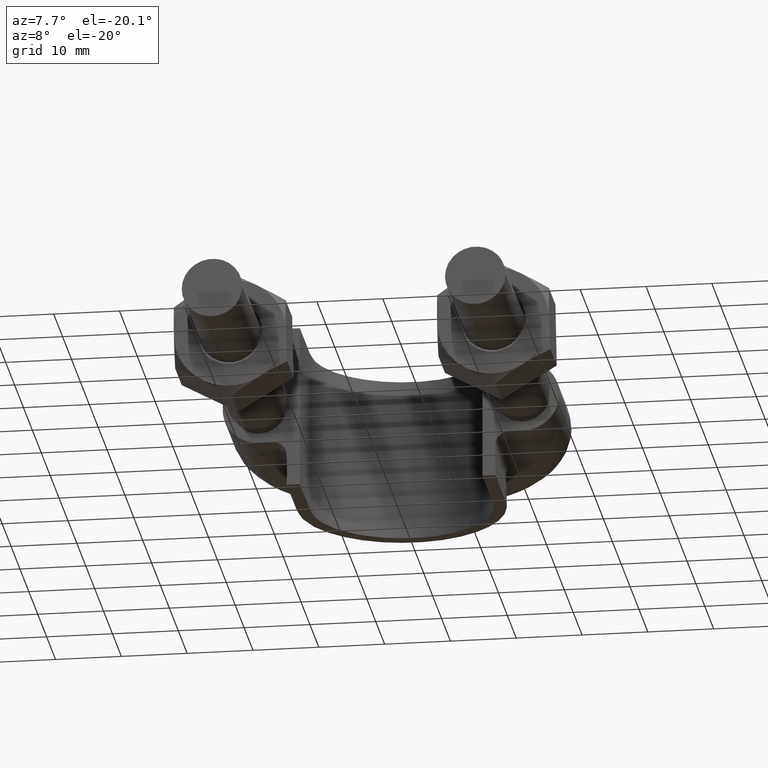
[diagram: clean part render]
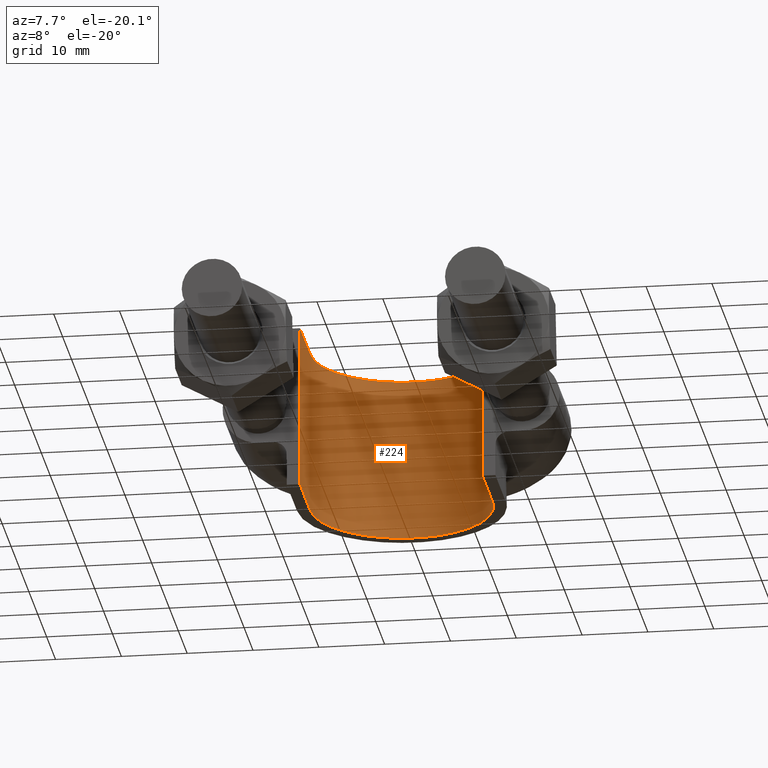
[diagram: same view with one face highlighted and labeled with its STEP entity id]
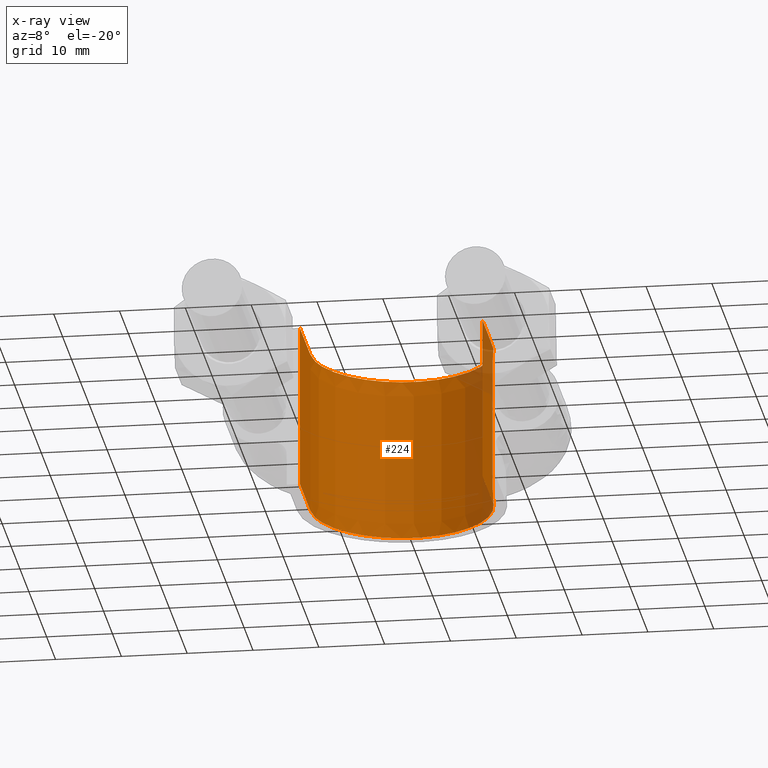
[diagram: x-ray of the same camera — body ghosted, the highlighted face saturated]
A machine part, auxiliary view. The second image highlights one B-rep face of the part: STEP entity #224.
The next image is the same camera in x-ray: the body ghosted, the highlighted face saturated — about 4% of this face is hidden behind the body in this view.
In plain terms, the highlighted face is a SurfaceOfExtrusion surface.
Its self-contained STEP definition (entity closure, byte-faithful):
#224 = ADVANCED_FACE( '', ( #291 ), #292, .T. );
#291 = FACE_OUTER_BOUND( '', #987, .T. );
#292 = SURFACE_OF_LINEAR_EXTRUSION( '', #988, #989 );
#987 = EDGE_LOOP( '', ( #1310, #1311, #1312, #1313 ) );
#988 = B_SPLINE_CURVE_WITH_KNOTS( '', 3, ( #1314, #1315, #1316, #1317, #1318, #1319, #1320, #1321, #1322, #1323, #1324, #1325, #1326, #1327, #1328, #1329, #1330, #1331 ), .UNSPECIFIED., .F., .F., ( 4, 3, 1, 1, 1, 1, 1, 1, 1, 1, 3, 4 ), ( 0.263975155279503, 1.00000000000000, 1.50000000000000, 1.75000000000000, 2.00000000000000, 3.00000000000000, 4.00000000000000, 5.00000000000000, 5.25000000000000, 5.50000000000000, 6.00000000000000, 6.73602484472050 ), .UNSPECIFIED. );
#989 = VECTOR( '', #1332, 1000.00000000000 );
#1310 = ORIENTED_EDGE( '', *, *, #1736, .F. );
#1311 = ORIENTED_EDGE( '', *, *, #1739, .T. );
#1312 = ORIENTED_EDGE( '', *, *, #1743, .T. );
#1313 = ORIENTED_EDGE( '', *, *, #1746, .F. );
#1314 = CARTESIAN_POINT( '', ( -13.8500000000000, 53.3000000000000, -59.0898515348929 ) );
#1315 = CARTESIAN_POINT( '', ( -13.8500000000000, 57.2500000000000, -59.0898515348929 ) );
#1316 = CARTESIAN_POINT( '', ( -13.8500000000000, 61.2000000000000, -59.0898515348929 ) );
#1317 = CARTESIAN_POINT( '', ( -13.8500000000000, 65.1500000000000, -59.0898515348929 ) );
#1318 = CARTESIAN_POINT( '', ( -13.8500000000000, 66.5764090913196, -59.0898515348929 ) );
#1319 = CARTESIAN_POINT( '', ( -13.4987711149041, 68.7652103300043, -59.0898515348929 ) );
#1320 = CARTESIAN_POINT( '', ( -12.3762577063388, 71.4805432618923, -59.0898515348929 ) );
#1321 = CARTESIAN_POINT( '', ( -10.1312776771716, 75.1665191788760, -59.0898515348929 ) );
#1322 = CARTESIAN_POINT( '', ( -4.56410324862349, 79.2237366283484, -59.0898515348929 ) );
#1323 = CARTESIAN_POINT( '', ( 4.56410324862353, 79.2237366283484, -59.0898515348929 ) );
#1324 = CARTESIAN_POINT( '', ( 10.1312776771716, 75.1665191788760, -59.0898515348929 ) );
#1325 = CARTESIAN_POINT( '', ( 12.3762577063388, 71.4805432618923, -59.0898515348929 ) );
#1326 = CARTESIAN_POINT( '', ( 13.4987711149041, 68.7652103300043, -59.0898515348929 ) );
#1327 = CARTESIAN_POINT( '', ( 13.8500000000000, 66.5764090913196, -59.0898515348929 ) );
#1328 = CARTESIAN_POINT( '', ( 13.8500000000000, 65.1500000000000, -59.0898515348929 ) );
#1329 = CARTESIAN_POINT( '', ( 13.8500000000000, 61.2000000000000, -59.0898515348929 ) );
#1330 = CARTESIAN_POINT( '', ( 13.8500000000000, 57.2500000000000, -59.0898515348929 ) );
#1331 = CARTESIAN_POINT( '', ( 13.8500000000000, 53.3000000000000, -59.0898515348929 ) );
#1332 = DIRECTION( '', ( 0.000000000000000, 0.000000000000000, 1.00000000000000 ) );
#1736 = EDGE_CURVE( '', #1860, #1862, #1863, .T. );
#1739 = EDGE_CURVE( '', #1860, #1867, #1868, .T. );
#1743 = EDGE_CURVE( '', #1867, #1872, #1875, .T. );
#1746 = EDGE_CURVE( '', #1862, #1872, #1878, .T. );
#1860 = VERTEX_POINT( '', #2068 );
#1862 = VERTEX_POINT( '', #2071 );
#1863 = LINE( '', #2072, #2073 );
#1867 = VERTEX_POINT( '', #2108 );
#1868 = B_SPLINE_CURVE_WITH_KNOTS( '', 3, ( #2109, #2110, #2111, #2112, #2113, #2114, #2115, #2116, #2117, #2118, #2119, #2120, #2121, #2122, #2123, #2124, #2125, #2126 ), .UNSPECIFIED., .F., .F., ( 4, 3, 1, 1, 1, 1, 1, 1, 1, 1, 3, 4 ), ( 0.263975155279503, 1.00000000000000, 1.50000000000000, 1.75000000000000, 2.00000000000000, 3.00000000000000, 4.00000000000000, 5.00000000000000, 5.25000000000000, 5.50000000000000, 6.00000000000000, 6.73602484472050 ), .UNSPECIFIED. );
#1872 = VERTEX_POINT( '', #2148 );
#1875 = LINE( '', #2152, #2153 );
#1878 = B_SPLINE_CURVE_WITH_KNOTS( '', 3, ( #2203, #2204, #2205, #2206, #2207, #2208, #2209, #2210, #2211, #2212, #2213, #2214, #2215, #2216, #2217, #2218, #2219, #2220 ), .UNSPECIFIED., .F., .F., ( 4, 3, 1, 1, 1, 1, 1, 1, 1, 1, 3, 4 ), ( 0.263975155279503, 1.00000000000000, 1.50000000000000, 1.75000000000000, 2.00000000000000, 3.00000000000000, 4.00000000000000, 5.00000000000000, 5.25000000000000, 5.50000000000000, 6.00000000000000, 6.73602484472050 ), .UNSPECIFIED. );
#2068 = CARTESIAN_POINT( '', ( -13.8500000000000, 53.3000000000000, -12.5000000000000 ) );
#2071 = CARTESIAN_POINT( '', ( -13.8500000000000, 53.3000000000000, 12.5000000000000 ) );
#2072 = CARTESIAN_POINT( '', ( -13.8500000000000, 53.3000000000000, -59.0898515348929 ) );
#2073 = VECTOR( '', #2602, 1000.00000000000 );
#2108 = CARTESIAN_POINT( '', ( 13.8500000000000, 53.3000000000000, -12.5000000000000 ) );
#2109 = CARTESIAN_POINT( '', ( -13.8500000000000, 53.3000000000000, -12.5000000000000 ) );
#2110 = CARTESIAN_POINT( '', ( -13.8500000000000, 57.2500000000000, -12.5000000000000 ) );
#2111 = CARTESIAN_POINT( '', ( -13.8500000000000, 61.2000000000000, -12.5000000000000 ) );
#2112 = CARTESIAN_POINT( '', ( -13.8500000000000, 65.1500000000000, -12.5000000000000 ) );
#2113 = CARTESIAN_POINT( '', ( -13.8500000000000, 66.5764090913196, -12.5000000000000 ) );
#2114 = CARTESIAN_POINT( '', ( -13.4987711149041, 68.7652103300043, -12.5000000000000 ) );
#2115 = CARTESIAN_POINT( '', ( -12.3762577063388, 71.4805432618923, -12.5000000000000 ) );
#2116 = CARTESIAN_POINT( '', ( -10.1312776771716, 75.1665191788760, -12.5000000000000 ) );
#2117 = CARTESIAN_POINT( '', ( -4.56410324862349, 79.2237366283484, -12.5000000000000 ) );
#2118 = CARTESIAN_POINT( '', ( 4.56410324862353, 79.2237366283484, -12.5000000000000 ) );
#2119 = CARTESIAN_POINT( '', ( 10.1312776771716, 75.1665191788760, -12.5000000000000 ) );
#2120 = CARTESIAN_POINT( '', ( 12.3762577063388, 71.4805432618923, -12.5000000000000 ) );
#2121 = CARTESIAN_POINT( '', ( 13.4987711149041, 68.7652103300043, -12.5000000000000 ) );
#2122 = CARTESIAN_POINT( '', ( 13.8500000000000, 66.5764090913196, -12.5000000000000 ) );
#2123 = CARTESIAN_POINT( '', ( 13.8500000000000, 65.1500000000000, -12.5000000000000 ) );
#2124 = CARTESIAN_POINT( '', ( 13.8500000000000, 61.2000000000000, -12.5000000000000 ) );
#2125 = CARTESIAN_POINT( '', ( 13.8500000000000, 57.2500000000000, -12.5000000000000 ) );
#2126 = CARTESIAN_POINT( '', ( 13.8500000000000, 53.3000000000000, -12.5000000000000 ) );
#2148 = CARTESIAN_POINT( '', ( 13.8500000000000, 53.3000000000000, 12.5000000000000 ) );
#2152 = CARTESIAN_POINT( '', ( 13.8500000000000, 53.3000000000000, -59.0898515348929 ) );
#2153 = VECTOR( '', #2606, 1000.00000000000 );
#2203 = CARTESIAN_POINT( '', ( -13.8500000000000, 53.3000000000000, 12.5000000000000 ) );
#2204 = CARTESIAN_POINT( '', ( -13.8500000000000, 57.2500000000000, 12.5000000000000 ) );
#2205 = CARTESIAN_POINT( '', ( -13.8500000000000, 61.2000000000000, 12.5000000000000 ) );
#2206 = CARTESIAN_POINT( '', ( -13.8500000000000, 65.1500000000000, 12.5000000000000 ) );
#2207 = CARTESIAN_POINT( '', ( -13.8500000000000, 66.5764090913196, 12.5000000000000 ) );
#2208 = CARTESIAN_POINT( '', ( -13.4987711149041, 68.7652103300043, 12.5000000000000 ) );
#2209 = CARTESIAN_POINT( '', ( -12.3762577063388, 71.4805432618923, 12.5000000000000 ) );
#2210 = CARTESIAN_POINT( '', ( -10.1312776771716, 75.1665191788760, 12.5000000000000 ) );
#2211 = CARTESIAN_POINT( '', ( -4.56410324862349, 79.2237366283484, 12.5000000000000 ) );
#2212 = CARTESIAN_POINT( '', ( 4.56410324862353, 79.2237366283484, 12.5000000000000 ) );
#2213 = CARTESIAN_POINT( '', ( 10.1312776771716, 75.1665191788760, 12.5000000000000 ) );
#2214 = CARTESIAN_POINT( '', ( 12.3762577063388, 71.4805432618923, 12.5000000000000 ) );
#2215 = CARTESIAN_POINT( '', ( 13.4987711149041, 68.7652103300043, 12.5000000000000 ) );
#2216 = CARTESIAN_POINT( '', ( 13.8500000000000, 66.5764090913196, 12.5000000000000 ) );
#2217 = CARTESIAN_POINT( '', ( 13.8500000000000, 65.1500000000000, 12.5000000000000 ) );
#2218 = CARTESIAN_POINT( '', ( 13.8500000000000, 61.2000000000000, 12.5000000000000 ) );
#2219 = CARTESIAN_POINT( '', ( 13.8500000000000, 57.2500000000000, 12.5000000000000 ) );
#2220 = CARTESIAN_POINT( '', ( 13.8500000000000, 53.3000000000000, 12.5000000000000 ) );
#2602 = DIRECTION( '', ( 0.000000000000000, 0.000000000000000, 1.00000000000000 ) );
#2606 = DIRECTION( '', ( 0.000000000000000, 0.000000000000000, 1.00000000000000 ) );